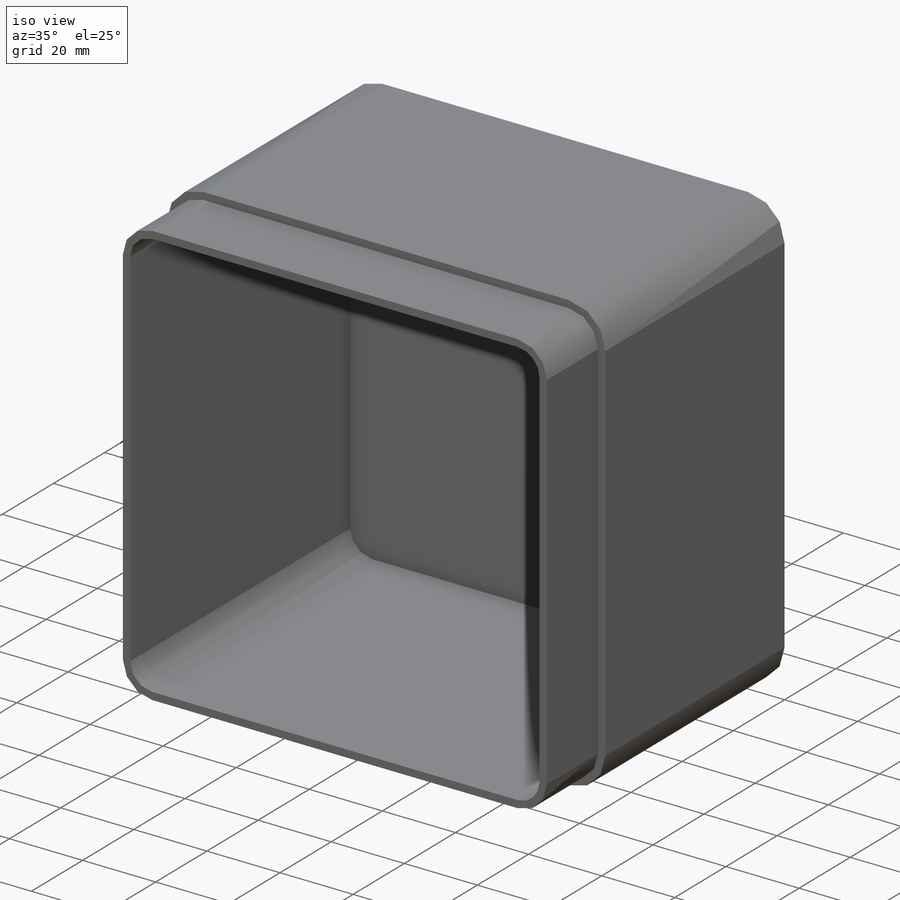
[diagram: iso view]
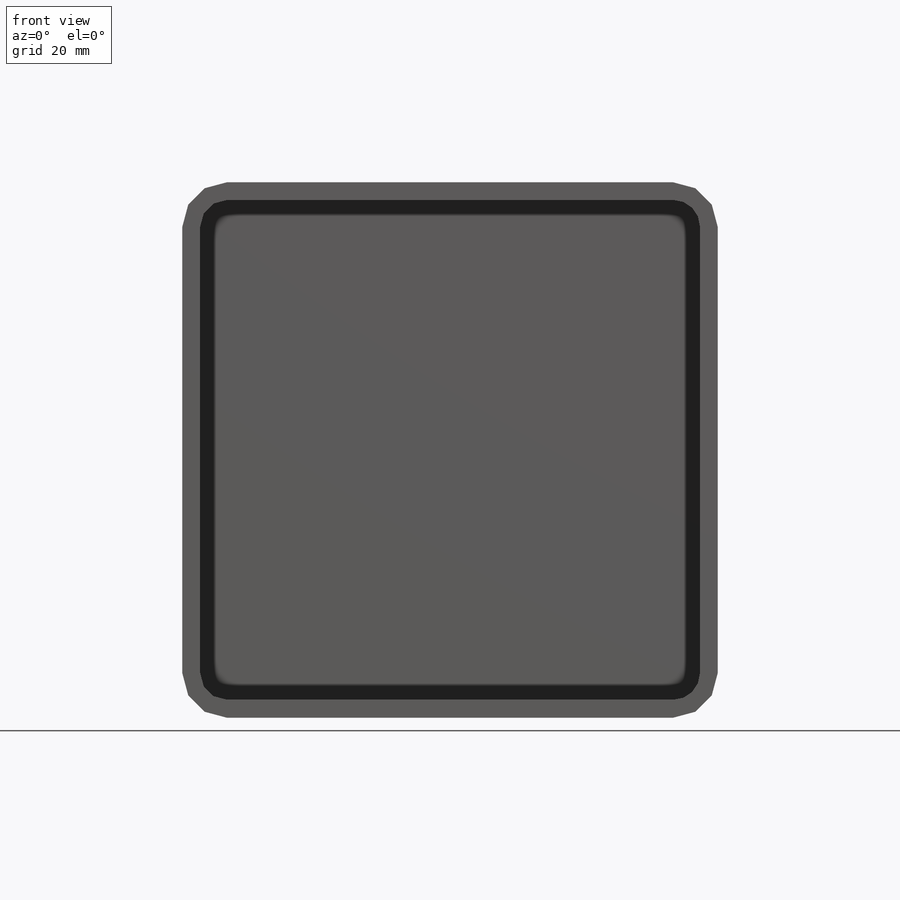
[diagram: front view]
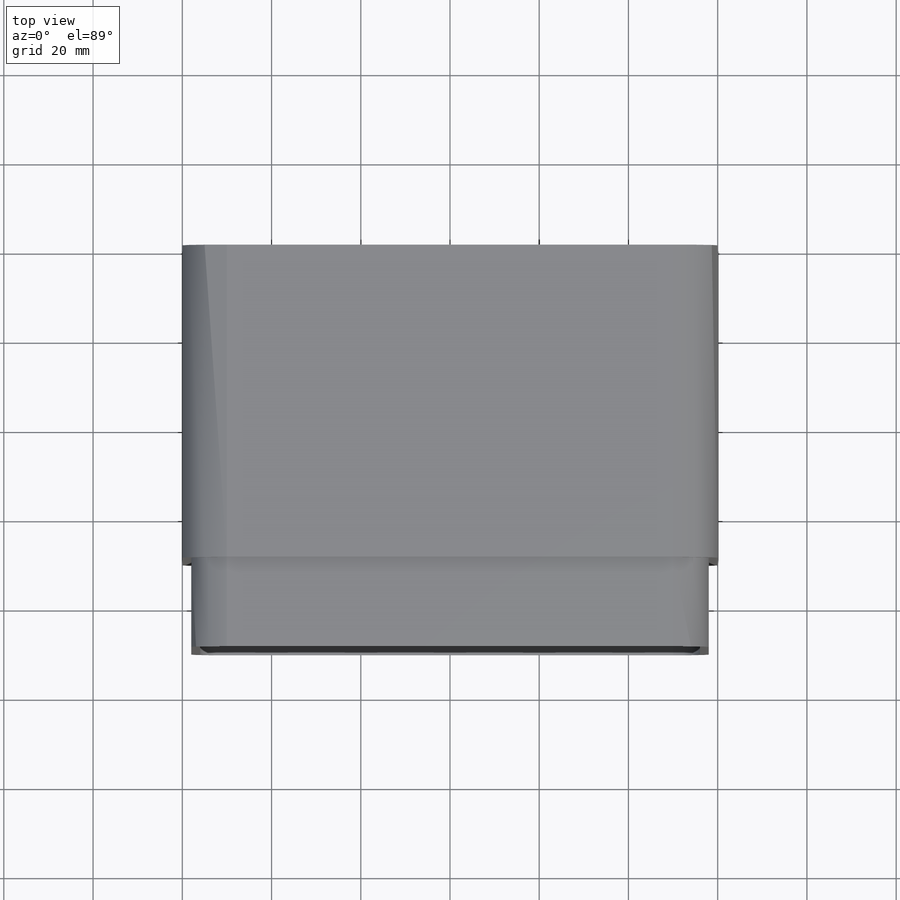
[diagram: top view]
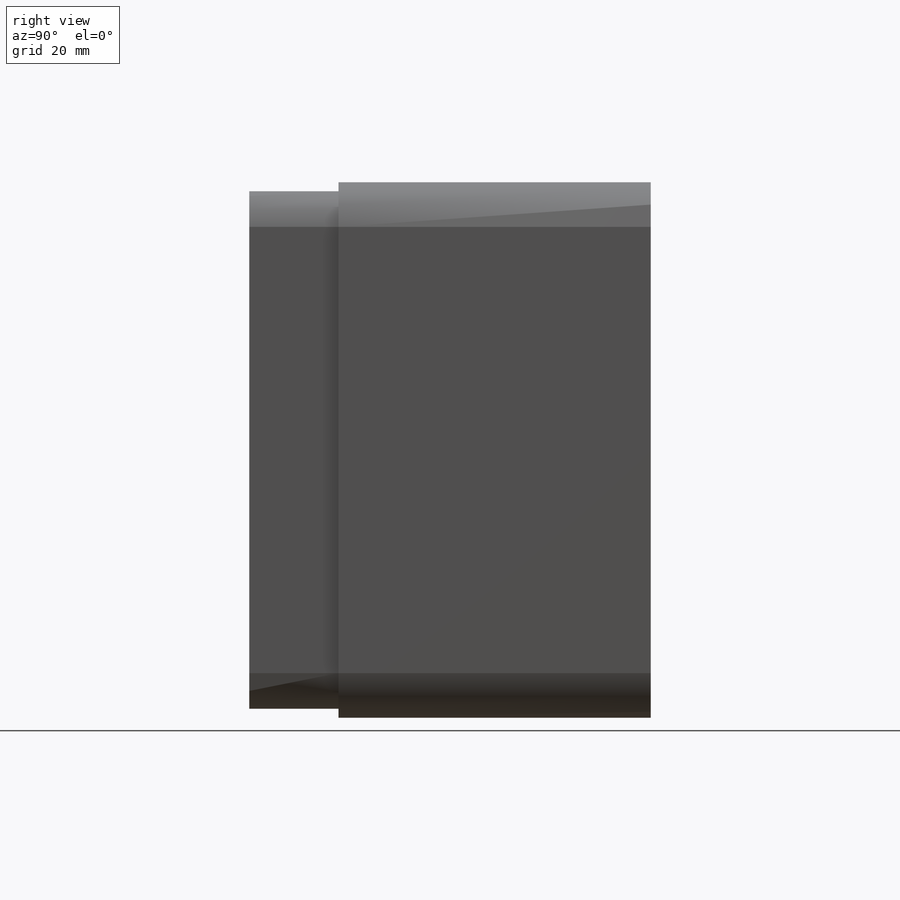
[diagram: right view]
SOLIDWORKS PART (.sldprt)
format: sldprt  version: not decoded by parser v0  size: 247,296 bytes
history: native  units: mm
features: sketch x3, material x1, extrude x1, fillet x1, shell x1, cut_extrude x1 (+12 scaffold rows collapsed)
feature tree (20):
  scaffold x12  (default folders/planes/origin — collapsed)
  material  "Material <not specified>"
  sketch  "Sketch1"  dims[D1=120.0mm D2=120.0mm]
  extrude  "Boss-Extrude1"  Depth=90mm
  fillet  "Fillet1"  Radius=10mm
  shell  "Shell1"  Thickness=4mm
  sketch  "Sketch7"  dims[D1=0.0mm D2=2.0mm]
  cut_extrude  "Cut-Extrude3"  Depth=20mm
  sketch  "Sketch3"  dims[D1=0.0mm D2=2.0mm]
decode coverage: 7 of 7 modeling features carry decoded parameters
note: suppression state not decoded; provenance and decode notes live in map.json
